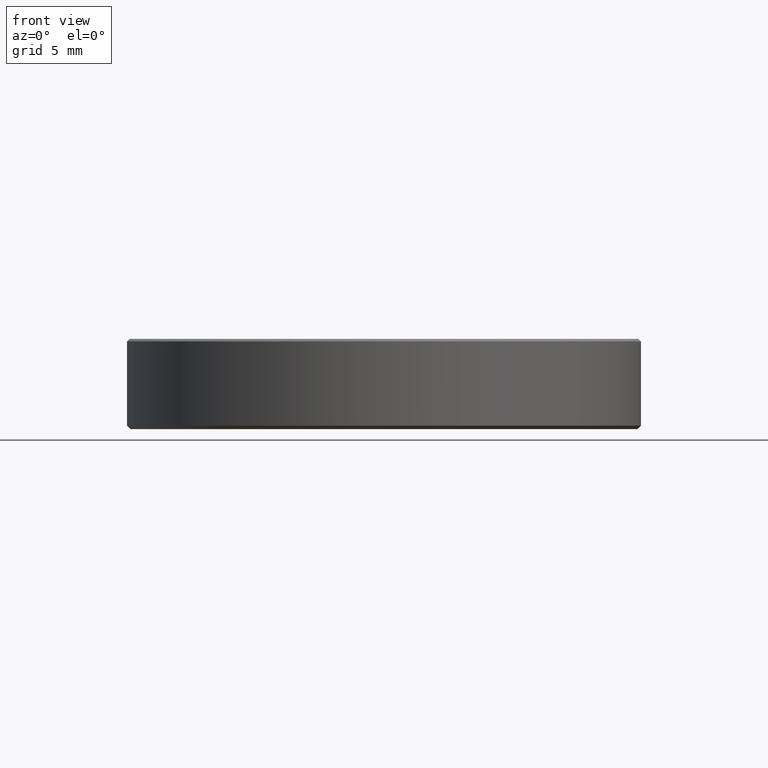
[diagram: clean part render]
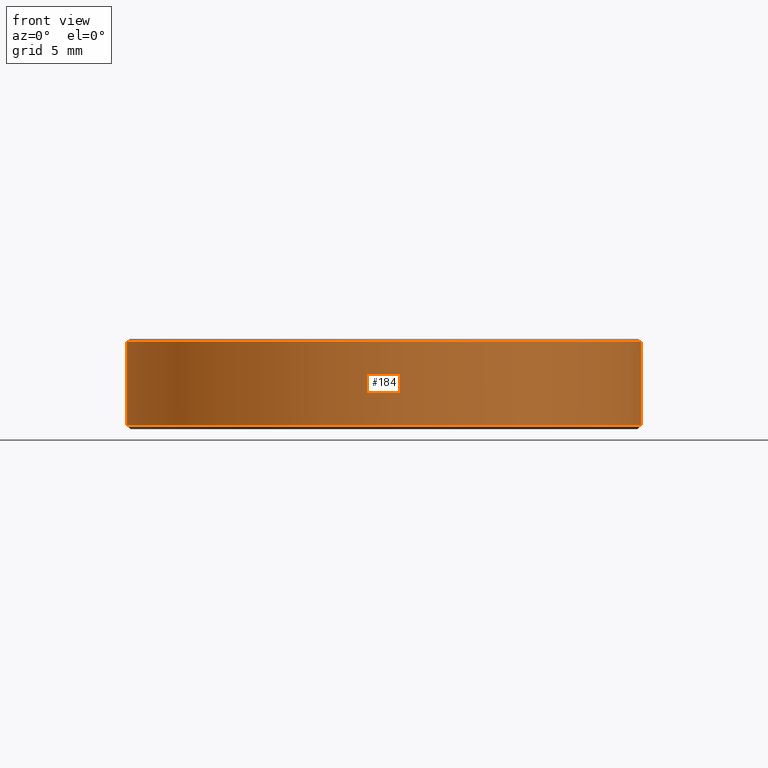
[diagram: same view with one face highlighted and labeled with its STEP entity id]
A machine part, front view. The second image highlights one B-rep face of the part: STEP entity #184.
In plain terms, the highlighted cylindrical surface (partial cylindrical patch) has radius 15 mm, axis along (-0, -0, 1).
Its self-contained STEP definition (entity closure, byte-faithful):
#1 = FACE_OUTER_BOUND ( 'NONE', #213, .T. ) ;
#8 = CARTESIAN_POINT ( 'NONE',  ( 15.00000000000000000, 0.000000000000000000, 2.500000000000000000 ) ) ;
#13 = DIRECTION ( 'NONE',  ( 0.000000000000000000, 0.000000000000000000, -1.000000000000000000 ) ) ;
#17 = AXIS2_PLACEMENT_3D ( 'NONE', #183, #13, #103 ) ;
#24 = VERTEX_POINT ( 'NONE', #89 ) ;
#30 = VERTEX_POINT ( 'NONE', #92 ) ;
#31 = CARTESIAN_POINT ( 'NONE',  ( 0.000000000000000000, 0.000000000000000000, 0.2000000000000048683 ) ) ;
#35 = CARTESIAN_POINT ( 'NONE',  ( -15.00000000000000000, 1.836970198721029589E-15, 2.500000000000000000 ) ) ;
#42 = ORIENTED_EDGE ( 'NONE', *, *, #67, .T. ) ;
#58 = LINE ( 'NONE', #35, #202 ) ;
#60 = CARTESIAN_POINT ( 'NONE',  ( 0.000000000000000000, 0.000000000000000000, 2.500000000000000000 ) ) ;
#67 = EDGE_CURVE ( 'NONE', #191, #24, #221, .T. ) ;
#74 = DIRECTION ( 'NONE',  ( -0.000000000000000000, -0.000000000000000000, 1.000000000000000000 ) ) ;
#83 = EDGE_CURVE ( 'NONE', #30, #168, #58, .T. ) ;
#89 = CARTESIAN_POINT ( 'NONE',  ( 15.00000000000000000, 0.000000000000000000, 5.120000000000013429 ) ) ;
#92 = CARTESIAN_POINT ( 'NONE',  ( -15.00000000000000000, 1.836970198721029589E-15, 0.2000000000000048683 ) ) ;
#103 = DIRECTION ( 'NONE',  ( -1.000000000000000000, 0.000000000000000000, 0.000000000000000000 ) ) ;
#115 = DIRECTION ( 'NONE',  ( -0.000000000000000000, -0.000000000000000000, 1.000000000000000000 ) ) ;
#117 = EDGE_CURVE ( 'NONE', #30, #191, #187, .T. ) ;
#124 = CYLINDRICAL_SURFACE ( 'NONE', #214, 15.00000000000000000 ) ;
#146 = CIRCLE ( 'NONE', #17, 15.00000000000000000 ) ;
#157 = ORIENTED_EDGE ( 'NONE', *, *, #117, .T. ) ;
#164 = CARTESIAN_POINT ( 'NONE',  ( 15.00000000000000000, 0.000000000000000000, 0.2000000000000048683 ) ) ;
#168 = VERTEX_POINT ( 'NONE', #206 ) ;
#171 = VECTOR ( 'NONE', #245, 1000.000000000000000 ) ;
#183 = CARTESIAN_POINT ( 'NONE',  ( 0.000000000000000000, 0.000000000000000000, 5.120000000000013429 ) ) ;
#184 = ADVANCED_FACE ( 'NONE', ( #1 ), #124, .T. ) ;
#187 = CIRCLE ( 'NONE', #223, 15.00000000000000000 ) ;
#191 = VERTEX_POINT ( 'NONE', #164 ) ;
#195 = DIRECTION ( 'NONE',  ( 1.000000000000000000, 0.000000000000000000, 0.000000000000000000 ) ) ;
#202 = VECTOR ( 'NONE', #74, 1000.000000000000000 ) ;
#204 = DIRECTION ( 'NONE',  ( 1.000000000000000000, 0.000000000000000000, 0.000000000000000000 ) ) ;
#206 = CARTESIAN_POINT ( 'NONE',  ( -15.00000000000000000, 1.836970198721029589E-15, 5.120000000000013429 ) ) ;
#213 = EDGE_LOOP ( 'NONE', ( #253, #157, #42, #255 ) ) ;
#214 = AXIS2_PLACEMENT_3D ( 'NONE', #60, #225, #204 ) ;
#215 = EDGE_CURVE ( 'NONE', #24, #168, #146, .T. ) ;
#221 = LINE ( 'NONE', #8, #171 ) ;
#223 = AXIS2_PLACEMENT_3D ( 'NONE', #31, #115, #195 ) ;
#225 = DIRECTION ( 'NONE',  ( -0.000000000000000000, -0.000000000000000000, 1.000000000000000000 ) ) ;
#245 = DIRECTION ( 'NONE',  ( -0.000000000000000000, -0.000000000000000000, 1.000000000000000000 ) ) ;
#253 = ORIENTED_EDGE ( 'NONE', *, *, #83, .F. ) ;
#255 = ORIENTED_EDGE ( 'NONE', *, *, #215, .T. ) ;